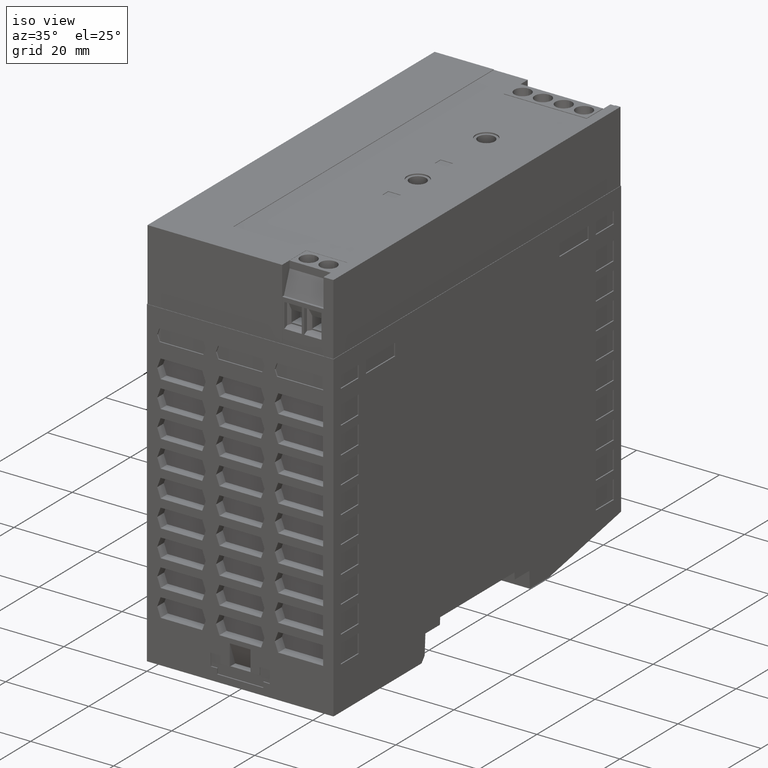
[diagram: clean part render]
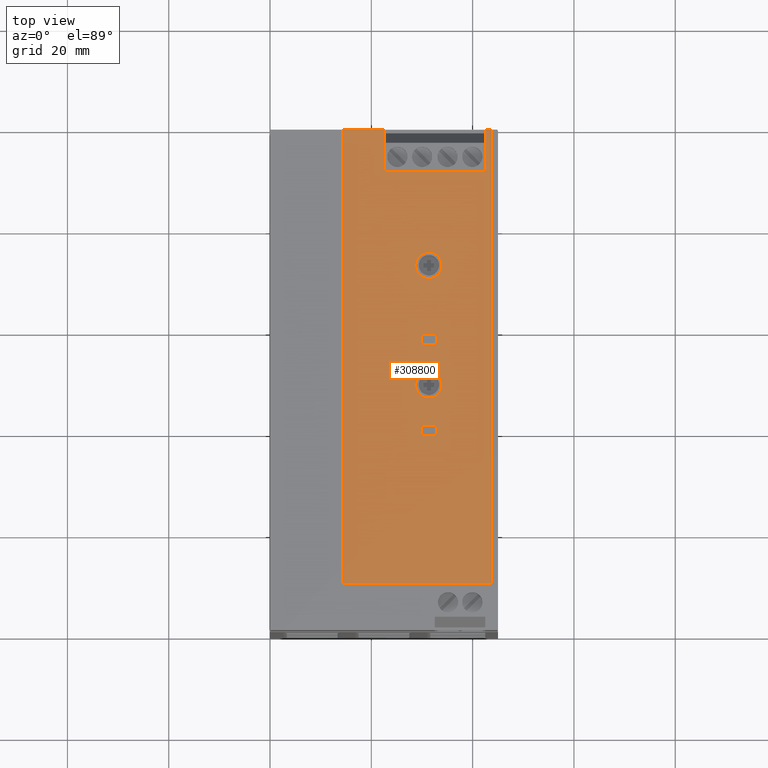
[diagram: tour spotlight — one face highlighted and labeled with its STEP entity id]
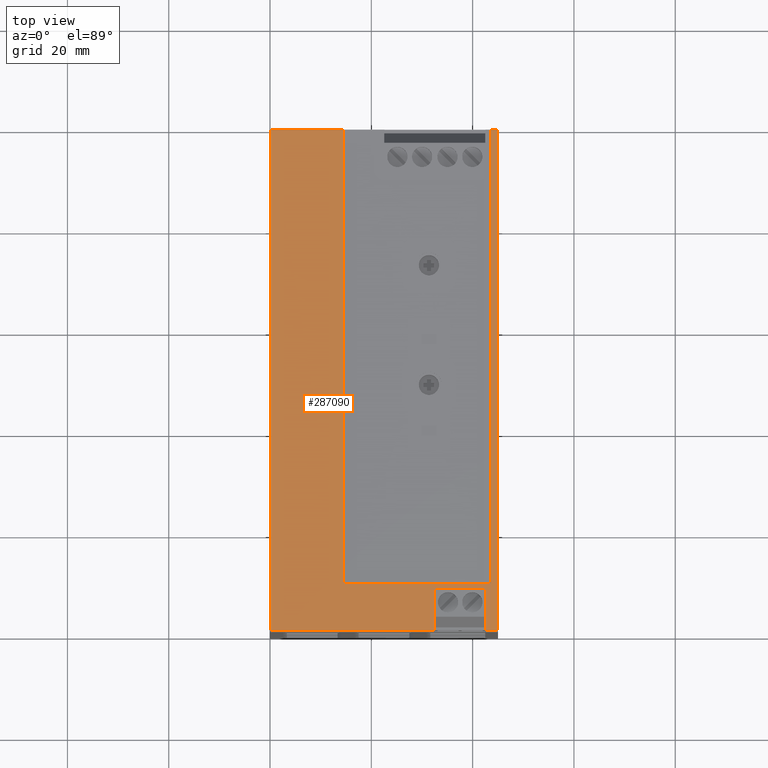
[diagram: tour spotlight — one face highlighted and labeled with its STEP entity id]
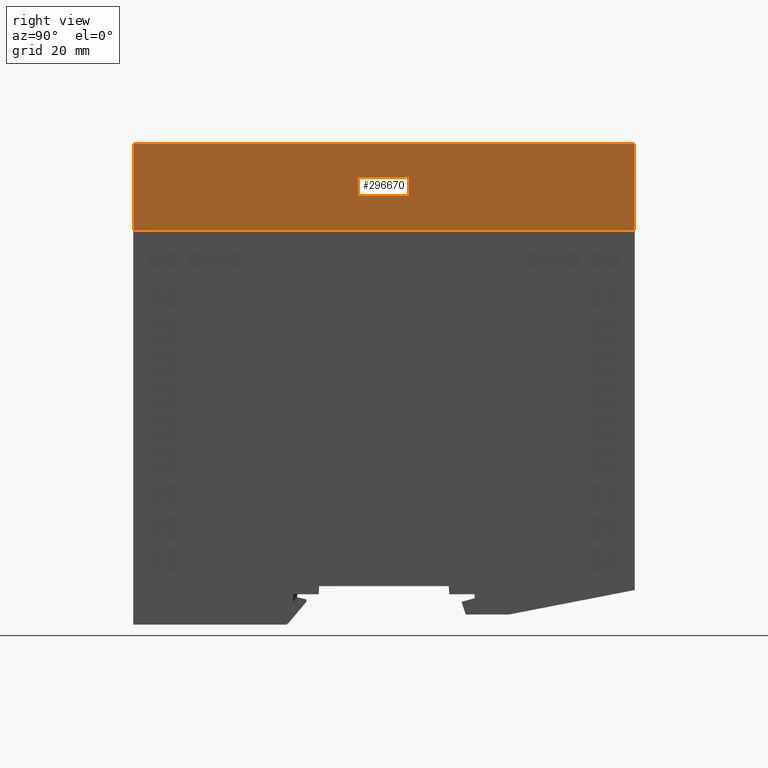
[diagram: tour spotlight — one face highlighted and labeled with its STEP entity id]
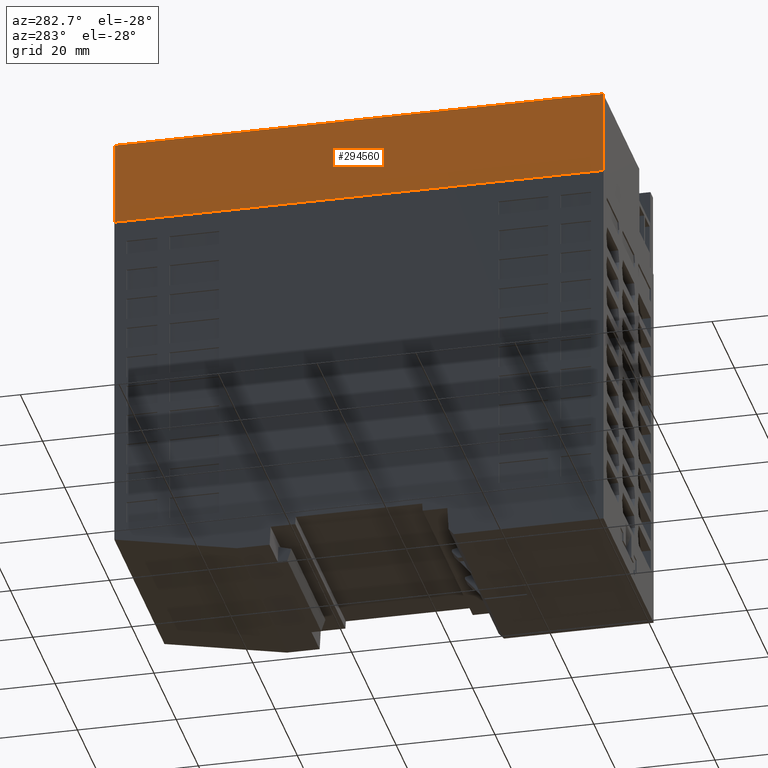
[diagram: tour spotlight — one face highlighted and labeled with its STEP entity id]
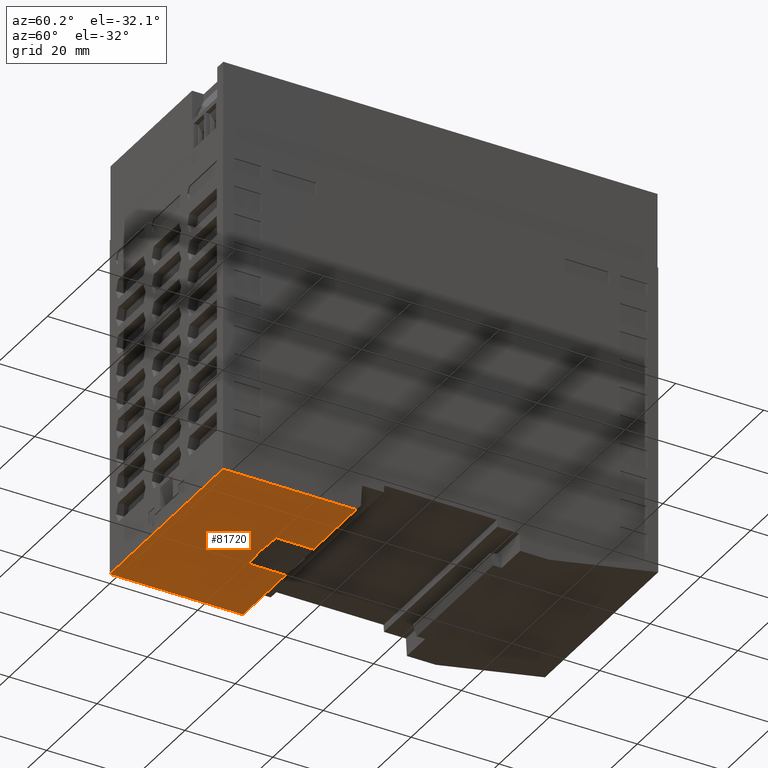
[diagram: tour spotlight — one face highlighted and labeled with its STEP entity id]
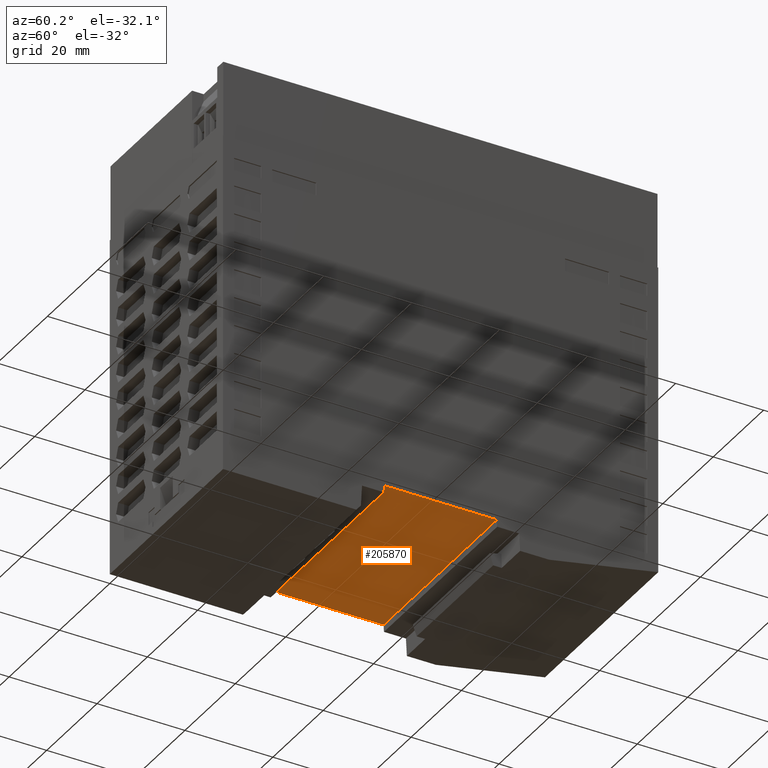
[diagram: tour spotlight — one face highlighted and labeled with its STEP entity id]
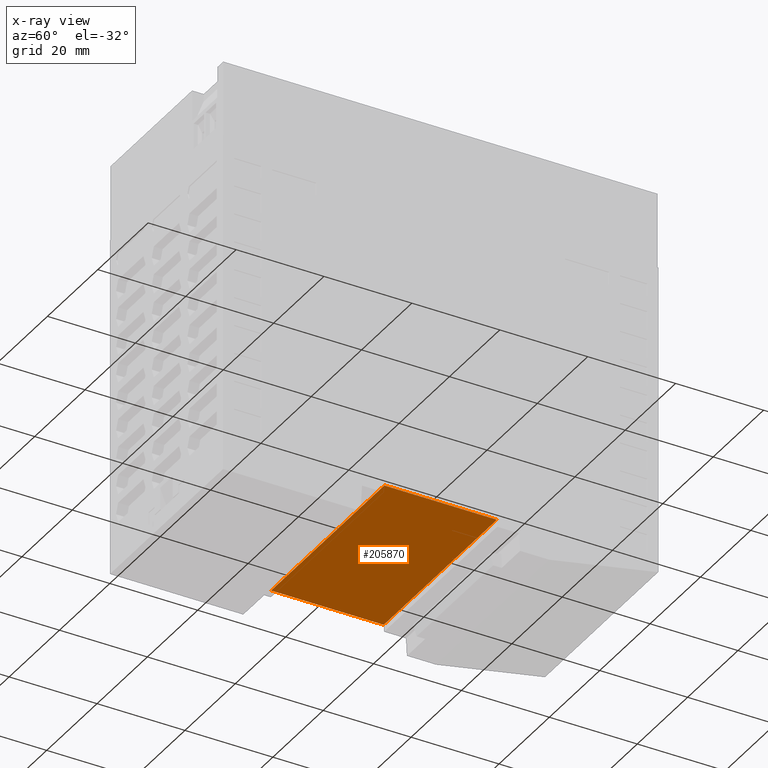
[diagram: x-ray of the same camera — body ghosted, this tour face saturated]
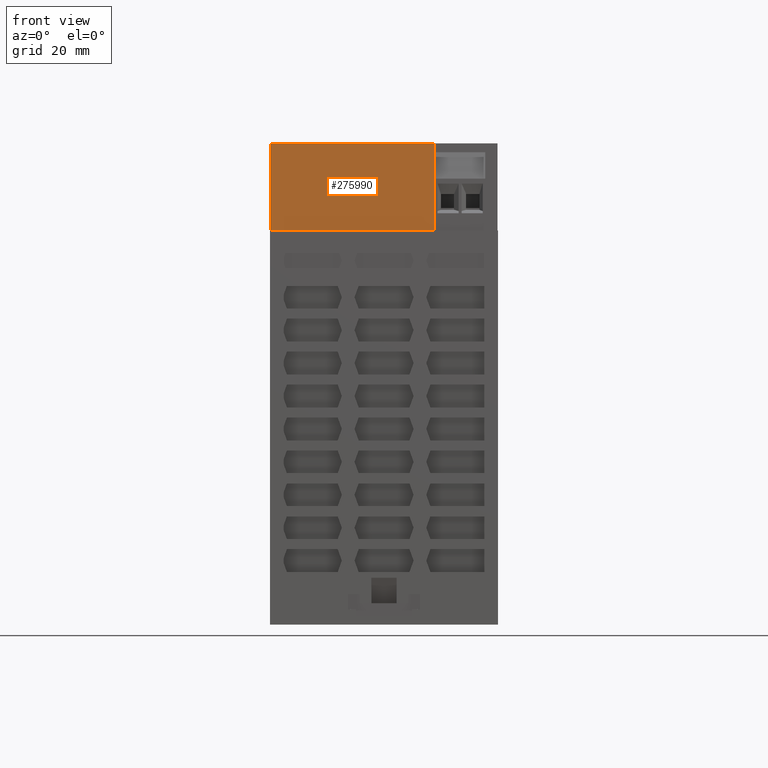
[diagram: tour spotlight — one face highlighted and labeled with its STEP entity id]
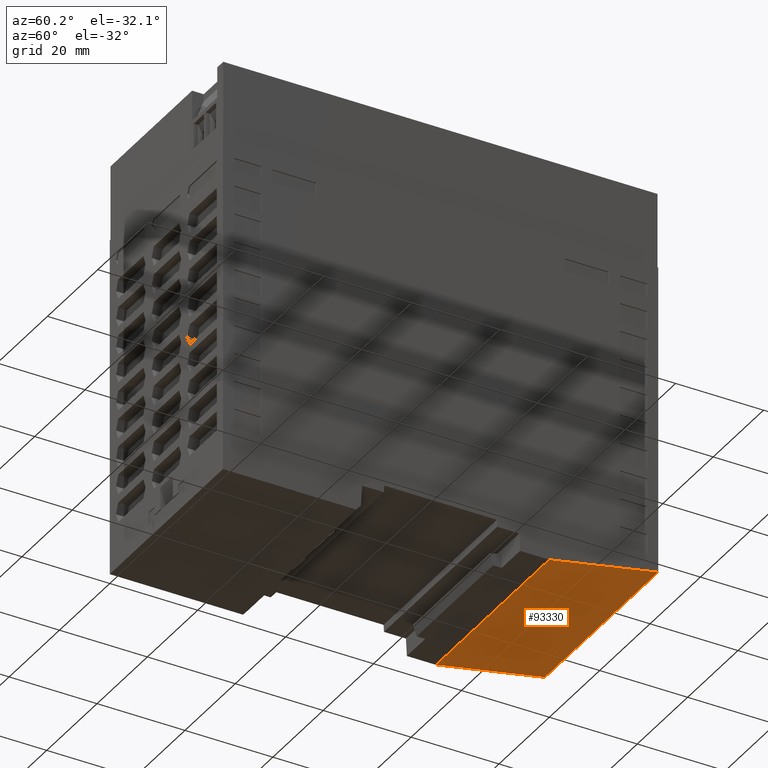
[diagram: tour spotlight — one face highlighted and labeled with its STEP entity id]
A machine part: a face-by-face anatomy tour. The part has 970 B-rep faces; the first image is the clean iso view, then the 8 largest visible faces are spotlighted one at a time (largest first), each with its STEP entity span.

Face 1 — top view, entity #308800. In plain terms, the highlighted planar face has unit normal (0, -0, 1).
Definition (entity closure, byte-faithful):
#295200=CARTESIAN_POINT('',(6.45,88.9,41.2000000000025));
#295210=VERTEX_POINT('',#295200);
#295380=CARTESIAN_POINT('',(-13.5,88.9,41.2000000000025));
#295390=VERTEX_POINT('',#295380);
#295420=CARTESIAN_POINT('',(1.77635683940025E-14,88.9,41.2000000000025))
;
#295430=DIRECTION('',(-1.,-1.38777878078145E-16,-2.22044604925031E-16));
#295440=VECTOR('',#295430,1.);
#295450=LINE('',#295420,#295440);
#295460=EDGE_CURVE('',#295210,#295390,#295450,.T.);
#295670=CARTESIAN_POINT('',(-13.5,88.9,46.8000000000022));
#295680=VERTEX_POINT('',#295670);
#295850=CARTESIAN_POINT('',(6.45000000000002,88.9,46.8000000000022));
#295860=VERTEX_POINT('',#295850);
#296270=CARTESIAN_POINT('',(6.45000000000002,88.9,-0.00958668310546074))
;
#296280=DIRECTION('',(0.,0.,1.));
#296290=VECTOR('',#296280,1.);
#296300=LINE('',#296270,#296290);
#296310=CARTESIAN_POINT('',(6.45000000000002,88.9,49.4));
#296320=VERTEX_POINT('',#296310);
#296330=EDGE_CURVE('',#295860,#296320,#296300,.T.);
#296860=CARTESIAN_POINT('',(-14.6104762308475,88.9,49.4));
#296870=VERTEX_POINT('',#296860);
#296900=CARTESIAN_POINT('',(1.77635683940025E-14,88.9,49.4));
#296910=DIRECTION('',(1.,1.38777878078145E-16,8.32667268468867E-17));
#296920=VECTOR('',#296910,1.);
#296930=LINE('',#296900,#296920);
#296940=CARTESIAN_POINT('',(-13.5,88.9,49.4));
#296950=VERTEX_POINT('',#296940);
#296960=EDGE_CURVE('',#296870,#296950,#296930,.T.);
#297280=CARTESIAN_POINT('',(-13.5,88.9,-0.00958668310546074));
#297290=DIRECTION('',(0.,0.,1.));
#297300=VECTOR('',#297290,1.);
#297310=LINE('',#297280,#297300);
#297320=EDGE_CURVE('',#295680,#296950,#297310,.T.);
#307180=CARTESIAN_POINT('',(6.45,88.9,-0.00958668310546074));
#307190=DIRECTION('',(2.22044604925031E-16,3.69778549322349E-32,-1.));
#307200=VECTOR('',#307190,1.);
#307210=LINE('',#307180,#307200);
#307220=EDGE_CURVE('',#295860,#295210,#307210,.T.);
#307340=CARTESIAN_POINT('',(-10.375,88.9,-0.00958668310545896));
#307350=DIRECTION('',(-1.38777878078145E-16,1.,0.));
#307360=DIRECTION('',(0.,0.,1.));
#307370=AXIS2_PLACEMENT_3D('',#307340,#307350,#307360);
#307380=PLANE('',#307370);
#307390=CARTESIAN_POINT('',(-2.34999999999998,88.9,22.5904133168945));
#307400=DIRECTION('',(0.,-1.,0.));
#307410=DIRECTION('',(1.,0.,0.));
#307420=AXIS2_PLACEMENT_3D('',#307390,#307400,#307410);
#307430=CIRCLE('',#307420,2.6);
#307440=CARTESIAN_POINT('',(0.25000000000002,88.9,22.5904133168945));
#307450=VERTEX_POINT('',#307440);
#307460=CARTESIAN_POINT('',(-4.94999999999998,88.9,22.5904133168945));
#307470=VERTEX_POINT('',#307460);
#307480=EDGE_CURVE('',#307450,#307470,#307430,.T.);
#307490=ORIENTED_EDGE('',*,*,#307480,.T.);
#307500=EDGE_CURVE('',#307470,#307450,#307430,.T.);
#307510=ORIENTED_EDGE('',*,*,#307500,.T.);
#307520=EDGE_LOOP('',(#307510,#307490));
#307530=FACE_BOUND('',#307520,.T.);
#307540=CARTESIAN_POINT('',(1.77635683940025E-14,88.9,-11.0095866831055)
);
#307550=DIRECTION('',(1.,1.38777878078145E-16,0.));
#307560=VECTOR('',#307550,1.);
#307570=LINE('',#307540,#307560);
#307580=CARTESIAN_POINT('',(-3.84999999999998,88.9,-11.0095866831055));
#307590=VERTEX_POINT('',#307580);
#307600=CARTESIAN_POINT('',(-0.849999999999981,88.9,-11.0095866831055));
#307610=VERTEX_POINT('',#307600);
#307620=EDGE_CURVE('',#307590,#307610,#307570,.T.);
#307630=ORIENTED_EDGE('',*,*,#307620,.T.);
#307640=CARTESIAN_POINT('',(-3.84999999999998,88.9,-0.00958668310546074)
);
#307650=DIRECTION('',(0.,0.,-1.));
#307660=VECTOR('',#307650,1.);
#307670=LINE('',#307640,#307660);
#307680=CARTESIAN_POINT('',(-3.84999999999998,88.9,-9.00958668310546));
#307690=VERTEX_POINT('',#307680);
#307700=EDGE_CURVE('',#307690,#307590,#307670,.T.);
#307710=ORIENTED_EDGE('',*,*,#307700,.T.);
#307720=CARTESIAN_POINT('',(1.77635683940025E-14,88.9,-9.00958668310546)
);
#307730=DIRECTION('',(-1.,-1.38777878078145E-16,0.));
#307740=VECTOR('',#307730,1.);
#307750=LINE('',#307720,#307740);
#307760=CARTESIAN_POINT('',(-0.849999999999981,88.9,-9.00958668310546));
#307770=VERTEX_POINT('',#307760);
#307780=EDGE_CURVE('',#307770,#307690,#307750,.T.);
#307790=ORIENTED_EDGE('',*,*,#307780,.T.);
#307800=CARTESIAN_POINT('',(-0.849999999999981,88.9,-0.00958668310546074
));
#307810=DIRECTION('',(0.,0.,1.));
#307820=VECTOR('',#307810,1.);
#307830=LINE('',#307800,#307820);
#307840=EDGE_CURVE('',#307610,#307770,#307830,.T.);
#307850=ORIENTED_EDGE('',*,*,#307840,.T.);
#307860=EDGE_LOOP('',(#307850,#307790,#307710,#307630));
#307870=FACE_BOUND('',#307860,.T.);
#307880=CARTESIAN_POINT('',(-2.34999999999998,88.9,-1.00958668310546));
#307890=DIRECTION('',(0.,-1.,0.));
#307900=DIRECTION('',(1.,0.,0.));
#307910=AXIS2_PLACEMENT_3D('',#307880,#307890,#307900);
#307920=CIRCLE('',#307910,2.6);
#307930=CARTESIAN_POINT('',(0.25000000000002,88.9,-1.00958668310546));
#307940=VERTEX_POINT('',#307930);
#307950=CARTESIAN_POINT('',(-4.94999999999998,88.9,-1.00958668310546));
#307960=VERTEX_POINT('',#307950);
#307970=EDGE_CURVE('',#307940,#307960,#307920,.T.);
#307980=ORIENTED_EDGE('',*,*,#307970,.T.);
#307990=EDGE_CURVE('',#307960,#307940,#307920,.T.);
#308000=ORIENTED_EDGE('',*,*,#307990,.T.);
#308010=EDGE_LOOP('',(#308000,#307980));
#308020=FACE_BOUND('',#308010,.T.);
#308030=CARTESIAN_POINT('',(-0.849999999999981,88.9,-0.00958668310546074
));
#308040=DIRECTION('',(0.,0.,1.));
#308050=VECTOR('',#308040,1.);
#308060=LINE('',#308030,#308050);
#308070=CARTESIAN_POINT('',(-0.849999999999981,88.9,6.99041331689454));
#308080=VERTEX_POINT('',#308070);
#308090=CARTESIAN_POINT('',(-0.849999999999981,88.9,8.99041331689454));
#308100=VERTEX_POINT('',#308090);
#308110=EDGE_CURVE('',#308080,#308100,#308060,.T.);
#308120=ORIENTED_EDGE('',*,*,#308110,.T.);
#308130=CARTESIAN_POINT('',(1.77635683940025E-14,88.9,6.99041331689454))
;
#308140=DIRECTION('',(1.,1.38777878078145E-16,0.));
#308150=VECTOR('',#308140,1.);
#308160=LINE('',#308130,#308150);
#308170=CARTESIAN_POINT('',(-3.84999999999998,88.9,6.99041331689454));
#308180=VERTEX_POINT('',#308170);
#308190=EDGE_CURVE('',#308180,#308080,#308160,.T.);
#308200=ORIENTED_EDGE('',*,*,#308190,.T.);
#308210=CARTESIAN_POINT('',(-3.84999999999998,88.9,-0.00958668310546074)
);
#308220=DIRECTION('',(0.,0.,-1.));
#308230=VECTOR('',#308220,1.);
#308240=LINE('',#308210,#308230);
#308250=CARTESIAN_POINT('',(-3.84999999999998,88.9,8.99041331689454));
#308260=VERTEX_POINT('',#308250);
#308270=EDGE_CURVE('',#308260,#308180,#308240,.T.);
#308280=ORIENTED_EDGE('',*,*,#308270,.T.);
#308290=CARTESIAN_POINT('',(1.77635683940025E-14,88.9,8.99041331689454))
;
#308300=DIRECTION('',(-1.,-1.38777878078145E-16,0.));
#308310=VECTOR('',#308300,1.);
#308320=LINE('',#308290,#308310);
#308330=EDGE_CURVE('',#308100,#308260,#308320,.T.);
#308340=ORIENTED_EDGE('',*,*,#308330,.T.);
#308350=EDGE_LOOP('',(#308340,#308280,#308200,#308120));
#308360=FACE_BOUND('',#308350,.T.);
#308370=CARTESIAN_POINT('',(14.6139683078,88.9,47.8904133168945));
#308380=DIRECTION('',(0.,0.,-1.));
#308390=VECTOR('',#308380,1.);
#308400=LINE('',#308370,#308390);
#308410=CARTESIAN_POINT('',(14.6104762308475,88.9,49.4));
#308420=VERTEX_POINT('',#308410);
#308430=CARTESIAN_POINT('',(14.6104762308475,88.9,-40.2235549909055));
#308440=VERTEX_POINT('',#308430);
#308450=EDGE_CURVE('',#308420,#308440,#308400,.T.);
#308460=ORIENTED_EDGE('',*,*,#308450,.T.);
#308470=CARTESIAN_POINT('',(1.77635683940025E-14,88.9,49.4));
#308480=DIRECTION('',(1.,1.38777878078145E-16,8.32667268468867E-17));
#308490=VECTOR('',#308480,1.);
#308500=LINE('',#308470,#308490);
#308510=EDGE_CURVE('',#296320,#308420,#308500,.T.);
#308520=ORIENTED_EDGE('',*,*,#308510,.T.);
#308530=ORIENTED_EDGE('',*,*,#296330,.T.);
#308540=ORIENTED_EDGE('',*,*,#307220,.F.);
#308550=ORIENTED_EDGE('',*,*,#295460,.F.);
#308560=CARTESIAN_POINT('',(-13.5,88.9,-0.00958668310546074));
#308570=DIRECTION('',(-2.22044604925031E-16,-3.69778549322349E-32,1.));
#308580=VECTOR('',#308570,1.);
#308590=LINE('',#308560,#308580);
#308600=EDGE_CURVE('',#295390,#295680,#308590,.T.);
#308610=ORIENTED_EDGE('',*,*,#308600,.F.);
#308620=ORIENTED_EDGE('',*,*,#297320,.F.);
#308630=ORIENTED_EDGE('',*,*,#296960,.T.);
#308640=CARTESIAN_POINT('',(-14.6104762308475,88.9,-0.00958668310546074)
);
#308650=DIRECTION('',(2.16229128575927E-16,2.4666929715261E-32,-1.));
#308660=VECTOR('',#308650,1.);
#308670=LINE('',#308640,#308660);
#308680=CARTESIAN_POINT('',(-14.6104762308475,88.9,-40.2235549909055));
#308690=VERTEX_POINT('',#308680);
#308700=EDGE_CURVE('',#296870,#308690,#308670,.T.);
#308710=ORIENTED_EDGE('',*,*,#308700,.F.);
#308720=CARTESIAN_POINT('',(1.77635683940025E-14,88.9,-40.2235549909055)
);
#308730=DIRECTION('',(-1.,-1.38777878078145E-16,0.));
#308740=VECTOR('',#308730,1.);
#308750=LINE('',#308720,#308740);
#308760=EDGE_CURVE('',#308440,#308690,#308750,.T.);
#308770=ORIENTED_EDGE('',*,*,#308760,.T.);
#308780=EDGE_LOOP('',(#308770,#308710,#308630,#308620,#308610,#308550,
#308540,#308530,#308520,#308460));
#308790=FACE_OUTER_BOUND('',#308780,.T.);
#308800=ADVANCED_FACE('',(#307530,#307870,#308020,#308360,#308790),
#307380,.T.);

Face 2 — top view, entity #287090. In plain terms, the highlighted planar face has unit normal (0, -0, 1).
Definition (entity closure, byte-faithful):
#275790=CARTESIAN_POINT('',(28.9,89.,-49.4));
#275800=VERTEX_POINT('',#275790);
#275830=CARTESIAN_POINT('',(1.77635683940025E-14,89.,-49.4));
#275840=DIRECTION('',(-1.,-0.,-8.32667268468867E-17));
#275850=VECTOR('',#275840,1.);
#275860=LINE('',#275830,#275850);
#275870=CARTESIAN_POINT('',(-3.52512200002573,89.,-49.4));
#275880=VERTEX_POINT('',#275870);
#275890=EDGE_CURVE('',#275800,#275880,#275860,.T.);
#276130=CARTESIAN_POINT('',(-3.52512200002318,89.,-0.00958668310546074))
;
#276140=DIRECTION('',(-5.16658127517E-14,-0.,-1.));
#276150=VECTOR('',#276140,1.);
#276160=LINE('',#276130,#276150);
#276170=CARTESIAN_POINT('',(-3.5251220000253,89.,-41.0999999999975));
#276180=VERTEX_POINT('',#276170);
#276190=EDGE_CURVE('',#276180,#275880,#276160,.T.);
#286220=CARTESIAN_POINT('',(1.77635683940025E-14,89.,
-0.00958668310546074));
#286230=DIRECTION('',(-0.,1.,0.));
#286240=DIRECTION('',(1.,0.,0.));
#286250=AXIS2_PLACEMENT_3D('',#286220,#286230,#286240);
#286260=PLANE('',#286250);
#286270=CARTESIAN_POINT('',(1.77635683940025E-14,89.,49.4));
#286280=DIRECTION('',(1.,0.,8.32667268468867E-17));
#286290=VECTOR('',#286280,1.);
#286300=LINE('',#286270,#286290);
#286310=CARTESIAN_POINT('',(-15.9,89.,49.4));
#286320=VERTEX_POINT('',#286310);
#286330=CARTESIAN_POINT('',(-14.6139683077967,89.,49.4));
#286340=VERTEX_POINT('',#286330);
#286350=EDGE_CURVE('',#286320,#286340,#286300,.T.);
#286360=ORIENTED_EDGE('',*,*,#286350,.T.);
#286370=CARTESIAN_POINT('',(-15.9,89.,-0.00958668310546074));
#286380=DIRECTION('',(0.,0.,-1.));
#286390=VECTOR('',#286380,1.);
#286400=LINE('',#286370,#286390);
#286410=CARTESIAN_POINT('',(-15.9,89.,-49.4));
#286420=VERTEX_POINT('',#286410);
#286430=EDGE_CURVE('',#286320,#286420,#286400,.T.);
#286440=ORIENTED_EDGE('',*,*,#286430,.F.);
#286450=CARTESIAN_POINT('',(1.77635683940025E-14,89.,-49.4));
#286460=DIRECTION('',(-1.,-0.,-8.32667268468867E-17));
#286470=VECTOR('',#286460,1.);
#286480=LINE('',#286450,#286470);
#286490=CARTESIAN_POINT('',(-13.5,89.,-49.4));
#286500=VERTEX_POINT('',#286490);
#286510=EDGE_CURVE('',#286500,#286420,#286480,.T.);
#286520=ORIENTED_EDGE('',*,*,#286510,.T.);
#286530=CARTESIAN_POINT('',(-13.5,89.,-0.00958668310546074));
#286540=DIRECTION('',(2.53252698286487E-28,0.,-1.));
#286550=VECTOR('',#286540,1.);
#286560=LINE('',#286530,#286550);
#286570=CARTESIAN_POINT('',(-13.5,89.,-41.0999999999975));
#286580=VERTEX_POINT('',#286570);
#286590=EDGE_CURVE('',#286580,#286500,#286560,.T.);
#286600=ORIENTED_EDGE('',*,*,#286590,.T.);
#286610=CARTESIAN_POINT('',(1.77635683940025E-14,89.,-41.0999999999975))
;
#286620=DIRECTION('',(1.,0.,2.22044604925031E-16));
#286630=VECTOR('',#286620,1.);
#286640=LINE('',#286610,#286630);
#286650=EDGE_CURVE('',#286580,#276180,#286640,.T.);
#286660=ORIENTED_EDGE('',*,*,#286650,.F.);
#286670=ORIENTED_EDGE('',*,*,#276190,.F.);
#286680=ORIENTED_EDGE('',*,*,#275890,.T.);
#286690=CARTESIAN_POINT('',(28.9,89.,-0.00958668310546074));
#286700=DIRECTION('',(0.,0.,-1.));
#286710=VECTOR('',#286700,1.);
#286720=LINE('',#286690,#286710);
#286730=CARTESIAN_POINT('',(28.9,89.,49.4));
#286740=VERTEX_POINT('',#286730);
#286750=EDGE_CURVE('',#286740,#275800,#286720,.T.);
#286760=ORIENTED_EDGE('',*,*,#286750,.T.);
#286770=CARTESIAN_POINT('',(1.77635683940025E-14,89.,49.4));
#286780=DIRECTION('',(1.,0.,8.32667268468867E-17));
#286790=VECTOR('',#286780,1.);
#286800=LINE('',#286770,#286790);
#286810=CARTESIAN_POINT('',(14.6139683077967,89.,49.4));
#286820=VERTEX_POINT('',#286810);
#286830=EDGE_CURVE('',#286820,#286740,#286800,.T.);
#286840=ORIENTED_EDGE('',*,*,#286830,.T.);
#286850=CARTESIAN_POINT('',(14.6139683077967,89.,-0.00958668310546074));
#286860=DIRECTION('',(2.27860081274136E-16,0.,-1.));
#286870=VECTOR('',#286860,1.);
#286880=LINE('',#286850,#286870);
#286890=CARTESIAN_POINT('',(14.6139683077967,89.,-40.2235549909055));
#286900=VERTEX_POINT('',#286890);
#286910=EDGE_CURVE('',#286820,#286900,#286880,.T.);
#286920=ORIENTED_EDGE('',*,*,#286910,.F.);
#286930=CARTESIAN_POINT('',(1.77635683940025E-14,89.,-40.2235549909055))
;
#286940=DIRECTION('',(-1.,0.,0.));
#286950=VECTOR('',#286940,1.);
#286960=LINE('',#286930,#286950);
#286970=CARTESIAN_POINT('',(-14.6139683077967,89.,-40.2235549909055));
#286980=VERTEX_POINT('',#286970);
#286990=EDGE_CURVE('',#286900,#286980,#286960,.T.);
#287000=ORIENTED_EDGE('',*,*,#286990,.F.);
#287010=CARTESIAN_POINT('',(-14.6139683077967,89.,-0.00958668310546074))
;
#287020=DIRECTION('',(2.16229128575927E-16,0.,-1.));
#287030=VECTOR('',#287020,1.);
#287040=LINE('',#287010,#287030);
#287050=EDGE_CURVE('',#286340,#286980,#287040,.T.);
#287060=ORIENTED_EDGE('',*,*,#287050,.T.);
#287070=EDGE_LOOP('',(#287060,#287000,#286920,#286840,#286760,#286680,
#286670,#286660,#286600,#286520,#286440,#286360));
#287080=FACE_OUTER_BOUND('',#287070,.T.);
#287090=ADVANCED_FACE('',(#287080),#286260,.T.);

Face 3 — right view, entity #296670. In plain terms, the highlighted planar face has unit normal (1, 0, 0).
Definition (entity closure, byte-faithful):
#286310=CARTESIAN_POINT('',(-15.9,89.,49.4));
#286320=VERTEX_POINT('',#286310);
#286370=CARTESIAN_POINT('',(-15.9,89.,-0.00958668310546074));
#286380=DIRECTION('',(0.,0.,-1.));
#286390=VECTOR('',#286380,1.);
#286400=LINE('',#286370,#286390);
#286410=CARTESIAN_POINT('',(-15.9,89.,-49.4));
#286420=VERTEX_POINT('',#286410);
#286430=EDGE_CURVE('',#286320,#286420,#286400,.T.);
#293490=CARTESIAN_POINT('',(-15.9,71.8,-49.4));
#293500=VERTEX_POINT('',#293490);
#293550=CARTESIAN_POINT('',(-15.9,71.8,-49.4));
#293560=DIRECTION('',(0.,-1.,1.66533453693773E-16));
#293570=VECTOR('',#293560,1.);
#293580=LINE('',#293550,#293570);
#293590=EDGE_CURVE('',#286420,#293500,#293580,.T.);
#293790=CARTESIAN_POINT('',(-15.9,71.8,-49.5));
#293800=DIRECTION('',(0.,-1.66533453693773E-16,-1.));
#293810=VECTOR('',#293800,1.);
#293820=LINE('',#293790,#293810);
#293830=CARTESIAN_POINT('',(-15.9,71.8,49.4));
#293840=VERTEX_POINT('',#293830);
#293850=EDGE_CURVE('',#293840,#293500,#293820,.T.);
#296510=CARTESIAN_POINT('',(-15.9,45.3,-2.1316282072803E-14));
#296520=DIRECTION('',(-1.,0.,0.));
#296530=DIRECTION('',(0.,1.66533453693773E-16,1.));
#296540=AXIS2_PLACEMENT_3D('',#296510,#296520,#296530);
#296550=PLANE('',#296540);
#296560=ORIENTED_EDGE('',*,*,#293850,.F.);
#296570=ORIENTED_EDGE('',*,*,#293590,.T.);
#296580=ORIENTED_EDGE('',*,*,#286430,.T.);
#296590=CARTESIAN_POINT('',(-15.9,71.8,49.4));
#296600=DIRECTION('',(0.,1.,-1.66533453693773E-16));
#296610=VECTOR('',#296600,1.);
#296620=LINE('',#296590,#296610);
#296630=EDGE_CURVE('',#293840,#286320,#296620,.T.);
#296640=ORIENTED_EDGE('',*,*,#296630,.T.);
#296650=EDGE_LOOP('',(#296640,#296580,#296570,#296560));
#296660=FACE_OUTER_BOUND('',#296650,.T.);
#296670=ADVANCED_FACE('',(#296660),#296550,.T.);

Face 4 — auxiliary view, entity #294560. In plain terms, the highlighted planar face has unit normal (-1, -0, -0).
Definition (entity closure, byte-faithful):
#275710=CARTESIAN_POINT('',(28.9,71.8,-49.4));
#275720=VERTEX_POINT('',#275710);
#275750=CARTESIAN_POINT('',(28.9,71.8,-49.4));
#275760=DIRECTION('',(0.,1.,-1.66533453693773E-16));
#275770=VECTOR('',#275760,1.);
#275780=LINE('',#275750,#275770);
#275790=CARTESIAN_POINT('',(28.9,89.,-49.4));
#275800=VERTEX_POINT('',#275790);
#275810=EDGE_CURVE('',#275720,#275800,#275780,.T.);
#286690=CARTESIAN_POINT('',(28.9,89.,-0.00958668310546074));
#286700=DIRECTION('',(0.,0.,-1.));
#286710=VECTOR('',#286700,1.);
#286720=LINE('',#286690,#286710);
#286730=CARTESIAN_POINT('',(28.9,89.,49.4));
#286740=VERTEX_POINT('',#286730);
#286750=EDGE_CURVE('',#286740,#275800,#286720,.T.);
#294180=CARTESIAN_POINT('',(28.9,71.8,49.4));
#294190=VERTEX_POINT('',#294180);
#294220=CARTESIAN_POINT('',(28.9,71.8,-0.00958668310546784));
#294230=DIRECTION('',(0.,-1.66533453693773E-16,-1.));
#294240=VECTOR('',#294230,1.);
#294250=LINE('',#294220,#294240);
#294260=EDGE_CURVE('',#294190,#275720,#294250,.T.);
#294400=CARTESIAN_POINT('',(28.9,79.85,0.));
#294410=DIRECTION('',(1.,0.,0.));
#294420=DIRECTION('',(0.,-1.66533453693773E-16,-1.));
#294430=AXIS2_PLACEMENT_3D('',#294400,#294410,#294420);
#294440=PLANE('',#294430);
#294450=ORIENTED_EDGE('',*,*,#286750,.F.);
#294460=ORIENTED_EDGE('',*,*,#275810,.T.);
#294470=ORIENTED_EDGE('',*,*,#294260,.T.);
#294480=CARTESIAN_POINT('',(28.9,71.8,49.4));
#294490=DIRECTION('',(0.,-1.,1.66533453693773E-16));
#294500=VECTOR('',#294490,1.);
#294510=LINE('',#294480,#294500);
#294520=EDGE_CURVE('',#286740,#294190,#294510,.T.);
#294530=ORIENTED_EDGE('',*,*,#294520,.T.);
#294540=EDGE_LOOP('',(#294530,#294470,#294460,#294450));
#294550=FACE_OUTER_BOUND('',#294540,.T.);
#294560=ADVANCED_FACE('',(#294550),#294440,.T.);

Face 5 — auxiliary view, entity #81720. In plain terms, the highlighted planar face has unit normal (0, -0, 1).
Definition (entity closure, byte-faithful):
#8480=CARTESIAN_POINT('',(-16.,-5.99999999999997,-19.1982991225571));
#8490=VERTEX_POINT('',#8480);
#8520=CARTESIAN_POINT('',(-16.,-5.99999999999999,0.));
#8530=DIRECTION('',(0.,0.,-1.));
#8540=VECTOR('',#8530,1.);
#8550=LINE('',#8520,#8540);
#8560=CARTESIAN_POINT('',(-16.,-5.99999999999999,-49.5));
#8570=VERTEX_POINT('',#8560);
#8580=EDGE_CURVE('',#8490,#8570,#8550,.T.);
#22410=CARTESIAN_POINT('',(29.,-5.99999999999999,0.));
#22420=DIRECTION('',(0.,0.,1.));
#22430=VECTOR('',#22420,1.);
#22440=LINE('',#22410,#22430);
#22450=CARTESIAN_POINT('',(29.,-5.99999999999999,-49.5));
#22460=VERTEX_POINT('',#22450);
#22470=CARTESIAN_POINT('',(29.,-5.99999999999997,-19.1982991225571));
#22480=VERTEX_POINT('',#22470);
#22490=EDGE_CURVE('',#22460,#22480,#22440,.T.);
#80840=CARTESIAN_POINT('',(6.50198069337659,-5.99999999999999,
-28.000000000001));
#80850=VERTEX_POINT('',#80840);
#81000=CARTESIAN_POINT('',(12.0531065115973,-5.99999999999999,
-27.7128728025069));
#81010=VERTEX_POINT('',#81000);
#81040=CARTESIAN_POINT('',(0.,-5.99999999999999,-28.3363093462102));
#81050=DIRECTION('',(0.998664984942109,0.,0.0516550854280406));
#81060=VECTOR('',#81050,1.);
#81070=LINE('',#81040,#81060);
#81080=EDGE_CURVE('',#80850,#81010,#81070,.T.);
#81200=CARTESIAN_POINT('',(1.74999999999998,-5.99999999999999,
-19.2078858056555));
#81210=DIRECTION('',(0.,1.,0.));
#81220=DIRECTION('',(0.,0.,1.));
#81230=AXIS2_PLACEMENT_3D('',#81200,#81210,#81220);
#81240=PLANE('',#81230);
#81250=CARTESIAN_POINT('',(0.,-5.99999999999999,-49.5));
#81260=DIRECTION('',(-1.,0.,0.));
#81270=VECTOR('',#81260,1.);
#81280=LINE('',#81250,#81270);
#81290=EDGE_CURVE('',#22460,#8570,#81280,.T.);
#81300=ORIENTED_EDGE('',*,*,#81290,.F.);
#81310=ORIENTED_EDGE('',*,*,#8580,.T.);
#81320=CARTESIAN_POINT('',(0.,-5.99999999999997,-19.1982991225571));
#81330=DIRECTION('',(1.,0.,0.));
#81340=VECTOR('',#81330,1.);
#81350=LINE('',#81320,#81340);
#81360=CARTESIAN_POINT('',(0.950854875195268,-5.99999999999997,
-19.1982991225571));
#81370=VERTEX_POINT('',#81360);
#81380=EDGE_CURVE('',#8490,#81370,#81350,.T.);
#81390=ORIENTED_EDGE('',*,*,#81380,.F.);
#81400=CARTESIAN_POINT('',(0.950854875195265,-5.99999999999999,0.));
#81410=DIRECTION('',(-1.38777878078145E-16,0.,1.));
#81420=VECTOR('',#81410,1.);
#81430=LINE('',#81400,#81420);
#81440=CARTESIAN_POINT('',(0.950854875195269,-5.99999999999999,
-27.7128728025089));
#81450=VERTEX_POINT('',#81440);
#81460=EDGE_CURVE('',#81450,#81370,#81430,.T.);
#81470=ORIENTED_EDGE('',*,*,#81460,.T.);
#81480=CARTESIAN_POINT('',(0.,-5.99999999999999,-27.6636906537919));
#81490=DIRECTION('',(0.998664984942109,0.,-0.0516550854280403));
#81500=VECTOR('',#81490,1.);
#81510=LINE('',#81480,#81500);
#81520=EDGE_CURVE('',#81450,#80850,#81510,.T.);
#81530=ORIENTED_EDGE('',*,*,#81520,.F.);
#81540=ORIENTED_EDGE('',*,*,#81080,.F.);
#81550=CARTESIAN_POINT('',(12.0531065115973,-5.99999999999999,0.));
#81560=DIRECTION('',(-1.38777878078145E-16,0.,1.));
#81570=VECTOR('',#81560,1.);
#81580=LINE('',#81550,#81570);
#81590=CARTESIAN_POINT('',(12.0531065115973,-5.99999999999999,
-19.1982991225571));
#81600=VERTEX_POINT('',#81590);
#81610=EDGE_CURVE('',#81010,#81600,#81580,.T.);
#81620=ORIENTED_EDGE('',*,*,#81610,.F.);
#81630=CARTESIAN_POINT('',(0.,-5.99999999999997,-19.1982991225571));
#81640=DIRECTION('',(1.,0.,0.));
#81650=VECTOR('',#81640,1.);
#81660=LINE('',#81630,#81650);
#81670=EDGE_CURVE('',#81600,#22480,#81660,.T.);
#81680=ORIENTED_EDGE('',*,*,#81670,.F.);
#81690=ORIENTED_EDGE('',*,*,#22490,.T.);
#81700=EDGE_LOOP('',(#81690,#81680,#81620,#81540,#81530,#81470,#81390,
#81310,#81300));
#81710=FACE_OUTER_BOUND('',#81700,.T.);
#81720=ADVANCED_FACE('',(#81710),#81240,.F.);

Face 6 — auxiliary view, entity #205870. An x-ray twin of the same camera follows (body ghosted, this face saturated) — the face is partly hidden behind the body. In plain terms, the highlighted planar face has unit normal (0, -0, 1).
Definition (entity closure, byte-faithful):
#8080=CARTESIAN_POINT('',(-16.,1.60000000000001,12.7904133168909));
#8090=VERTEX_POINT('',#8080);
#8120=CARTESIAN_POINT('',(-16.,1.59999999999998,0.));
#8130=DIRECTION('',(0.,0.,1.));
#8140=VECTOR('',#8130,1.);
#8150=LINE('',#8120,#8140);
#8160=CARTESIAN_POINT('',(-16.,1.60000000000001,-12.805946912413));
#8170=VERTEX_POINT('',#8160);
#8180=EDGE_CURVE('',#8170,#8090,#8150,.T.);
#22790=CARTESIAN_POINT('',(29.,1.60000000000001,-12.805946912413));
#22800=VERTEX_POINT('',#22790);
#22830=CARTESIAN_POINT('',(29.,1.59999999999998,0.));
#22840=DIRECTION('',(0.,0.,-1.));
#22850=VECTOR('',#22840,1.);
#22860=LINE('',#22830,#22850);
#22870=CARTESIAN_POINT('',(29.,1.60000000000001,12.7904133168909));
#22880=VERTEX_POINT('',#22870);
#22890=EDGE_CURVE('',#22880,#22800,#22860,.T.);
#91780=CARTESIAN_POINT('',(0.,1.59999999999999,12.7904133168909));
#91790=DIRECTION('',(1.,0.,0.));
#91800=VECTOR('',#91790,1.);
#91810=LINE('',#91780,#91800);
#91820=EDGE_CURVE('',#8090,#22880,#91810,.T.);
#205710=CARTESIAN_POINT('',(1.74999999999998,1.60000000000001,
12.7904133168909));
#205720=DIRECTION('',(0.,1.,0.));
#205730=DIRECTION('',(0.,0.,1.));
#205740=AXIS2_PLACEMENT_3D('',#205710,#205720,#205730);
#205750=PLANE('',#205740);
#205760=CARTESIAN_POINT('',(0.,1.60000000000001,-12.805946912413));
#205770=DIRECTION('',(1.,0.,0.));
#205780=VECTOR('',#205770,1.);
#205790=LINE('',#205760,#205780);
#205800=EDGE_CURVE('',#8170,#22800,#205790,.T.);
#205810=ORIENTED_EDGE('',*,*,#205800,.T.);
#205820=ORIENTED_EDGE('',*,*,#8180,.F.);
#205830=ORIENTED_EDGE('',*,*,#91820,.F.);
#205840=ORIENTED_EDGE('',*,*,#22890,.F.);
#205850=EDGE_LOOP('',(#205840,#205830,#205820,#205810));
#205860=FACE_OUTER_BOUND('',#205850,.T.);
#205870=ADVANCED_FACE('',(#205860),#205750,.F.);

Face 7 — front view, entity #275990. In plain terms, the highlighted planar face has unit normal (-0, 1, 0).
Definition (entity closure, byte-faithful):
#275600=CARTESIAN_POINT('',(15.9,71.8,-49.4));
#275610=DIRECTION('',(-8.32667268468867E-17,1.66533453693773E-16,1.));
#275620=DIRECTION('',(-1.,-1.54074395550981E-33,-8.32667268468867E-17));
#275630=AXIS2_PLACEMENT_3D('',#275600,#275610,#275620);
#275640=PLANE('',#275630);
#275650=CARTESIAN_POINT('',(1.77635683940025E-14,71.8,-49.4));
#275660=DIRECTION('',(1.,0.,8.32667268468867E-17));
#275670=VECTOR('',#275660,1.);
#275680=LINE('',#275650,#275670);
#275690=CARTESIAN_POINT('',(-3.525122000026,71.8,-49.4));
#275700=VERTEX_POINT('',#275690);
#275710=CARTESIAN_POINT('',(28.9,71.8,-49.4));
#275720=VERTEX_POINT('',#275710);
#275730=EDGE_CURVE('',#275700,#275720,#275680,.T.);
#275740=ORIENTED_EDGE('',*,*,#275730,.F.);
#275750=CARTESIAN_POINT('',(28.9,71.8,-49.4));
#275760=DIRECTION('',(0.,1.,-1.66533453693773E-16));
#275770=VECTOR('',#275760,1.);
#275780=LINE('',#275750,#275770);
#275790=CARTESIAN_POINT('',(28.9,89.,-49.4));
#275800=VERTEX_POINT('',#275790);
#275810=EDGE_CURVE('',#275720,#275800,#275780,.T.);
#275820=ORIENTED_EDGE('',*,*,#275810,.F.);
#275830=CARTESIAN_POINT('',(1.77635683940025E-14,89.,-49.4));
#275840=DIRECTION('',(-1.,-0.,-8.32667268468867E-17));
#275850=VECTOR('',#275840,1.);
#275860=LINE('',#275830,#275850);
#275870=CARTESIAN_POINT('',(-3.52512200002573,89.,-49.4));
#275880=VERTEX_POINT('',#275870);
#275890=EDGE_CURVE('',#275800,#275880,#275860,.T.);
#275900=ORIENTED_EDGE('',*,*,#275890,.F.);
#275910=CARTESIAN_POINT('',(-3.525122000026,71.8,-49.4));
#275920=DIRECTION('',(-1.57751373625647E-14,-1.,1.66533453693772E-16));
#275930=VECTOR('',#275920,1.);
#275940=LINE('',#275910,#275930);
#275950=EDGE_CURVE('',#275880,#275700,#275940,.T.);
#275960=ORIENTED_EDGE('',*,*,#275950,.F.);
#275970=EDGE_LOOP('',(#275960,#275900,#275820,#275740));
#275980=FACE_OUTER_BOUND('',#275970,.T.);
#275990=ADVANCED_FACE('',(#275980),#275640,.F.);

Face 8 — auxiliary view, entity #93330. In plain terms, the highlighted planar face has unit normal (0, -0.1908, 0.9816).
Definition (entity closure, byte-faithful):
#7680=CARTESIAN_POINT('',(-16.,0.820631666614119,49.5));
#7690=VERTEX_POINT('',#7680);
#7720=CARTESIAN_POINT('',(-16.,-4.,24.7));
#7730=DIRECTION('',(0.,0.190808995376495,0.981627183447674));
#7740=VECTOR('',#7730,1.);
#7750=LINE('',#7720,#7740);
#7760=CARTESIAN_POINT('',(-16.,-3.99999999999999,24.7));
#7770=VERTEX_POINT('',#7760);
#7780=EDGE_CURVE('',#7770,#7690,#7750,.T.);
#23190=CARTESIAN_POINT('',(29.,-3.99999999999999,24.7));
#23200=VERTEX_POINT('',#23190);
#23230=CARTESIAN_POINT('',(29.,-8.80119363570036,0.));
#23240=DIRECTION('',(0.,-0.190808995376495,-0.981627183447674));
#23250=VECTOR('',#23240,1.);
#23260=LINE('',#23230,#23250);
#23270=CARTESIAN_POINT('',(29.,0.820631666614119,49.5));
#23280=VERTEX_POINT('',#23270);
#23290=EDGE_CURVE('',#23280,#23200,#23260,.T.);
#93120=CARTESIAN_POINT('',(-11.25,0.820631666614119,49.5));
#93130=DIRECTION('',(0.,0.981627183447674,-0.190808995376495));
#93140=DIRECTION('',(0.,0.190808995376495,0.981627183447674));
#93150=AXIS2_PLACEMENT_3D('',#93120,#93130,#93140);
#93160=PLANE('',#93150);
#93170=ORIENTED_EDGE('',*,*,#7780,.F.);
#93180=CARTESIAN_POINT('',(0.,0.820631666614119,49.5));
#93190=DIRECTION('',(-1.,0.,0.));
#93200=VECTOR('',#93190,1.);
#93210=LINE('',#93180,#93200);
#93220=EDGE_CURVE('',#23280,#7690,#93210,.T.);
#93230=ORIENTED_EDGE('',*,*,#93220,.T.);
#93240=ORIENTED_EDGE('',*,*,#23290,.F.);
#93250=CARTESIAN_POINT('',(0.,-4.00000000000001,24.7));
#93260=DIRECTION('',(1.,0.,0.));
#93270=VECTOR('',#93260,1.);
#93280=LINE('',#93250,#93270);
#93290=EDGE_CURVE('',#7770,#23200,#93280,.T.);
#93300=ORIENTED_EDGE('',*,*,#93290,.T.);
#93310=EDGE_LOOP('',(#93300,#93240,#93230,#93170));
#93320=FACE_OUTER_BOUND('',#93310,.T.);
#93330=ADVANCED_FACE('',(#93320),#93160,.F.);